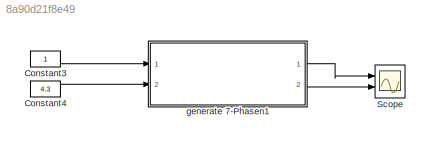
MODEL slx_8a90d21f8e49
KIND model
CONFIG AbsTol = auto
CONFIG EnableMultiTasking = off
CONFIG FixedStep = auto
CONFIG MaxStep = auto
CONFIG MinStep = auto
CONFIG RelTol = 1e-3
CONFIG SampleTimeConstraint = Unconstrained
CONFIG Solver = VariableStepAuto
CONFIG SolverName = VariableStepAuto
CONFIG StartTime = 0.0
CONFIG StopTime = 20
BLOCK [Constant] Constant3
BLOCK [Constant] Constant4
  Value = 4.3
BLOCK [Scope] Scope
  Floating = off
  NumInputPorts = 2
  Ports = [2]
  ScopeSpecificationString = Simulink.scopes.TimeScopeBlockCfg('CurrentConfiguration', extmgr.ConfigurationSet(extmgr.Configuration('Core','General UI',true),extmgr.Configuration('Core','Source UI',true),extmgr.Configuration('Sources','WiredSimulink',true,'DataLoggingVariableName','ScopeData1'),extmgr.Configuration('Visuals','Time Domain',true,'SerializedDisplays',{struct('MinYLimReal','0.95592','MaxYLimReal','1.01052','YLabe...<+1590ch>
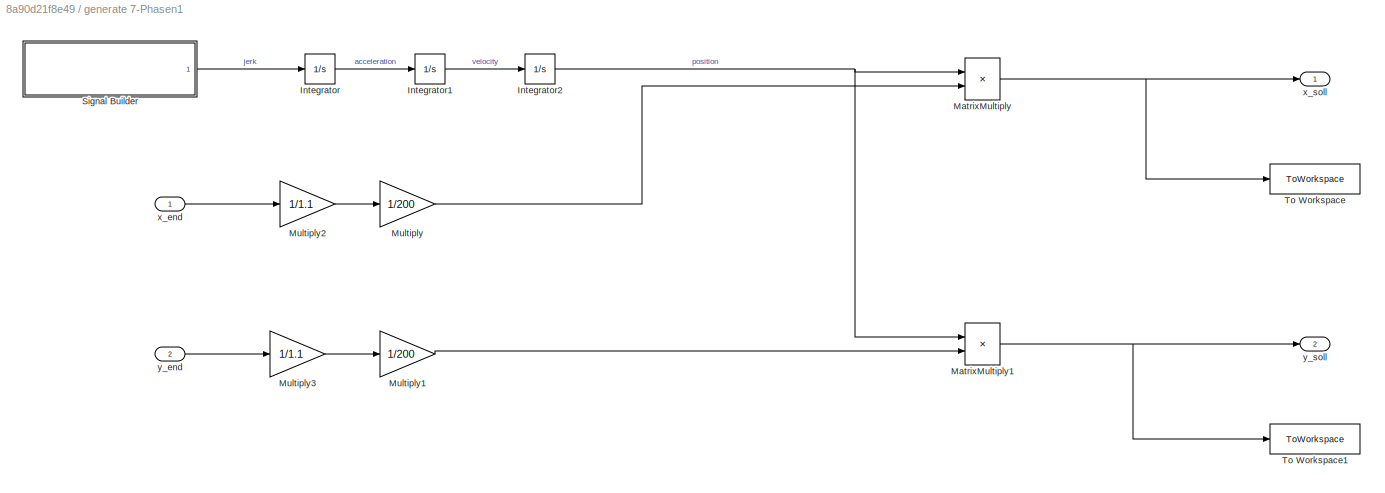
BLOCK [SubSystem] generate 7-Phasen1
  Ports = [2, 2]
  RequestExecContextInheritance = off
BLOCK [Integrator] generate 7-Phasen1/Integrator
  Ports = [1, 1]
BLOCK [Integrator] generate 7-Phasen1/Integrator1
  Ports = [1, 1]
BLOCK [Integrator] generate 7-Phasen1/Integrator2
  Ports = [1, 1]
BLOCK [Product] generate 7-Phasen1/MatrixMultiply
  Ports = [2, 1]
BLOCK [Product] generate 7-Phasen1/MatrixMultiply1
  Ports = [2, 1]
BLOCK [Gain] generate 7-Phasen1/Multiply
  Gain = 1/200
BLOCK [Gain] generate 7-Phasen1/Multiply1
  Gain = 1/200
BLOCK [Gain] generate 7-Phasen1/Multiply2
  Gain = 1/1.1
BLOCK [Gain] generate 7-Phasen1/Multiply3
  Gain = 1/1.1
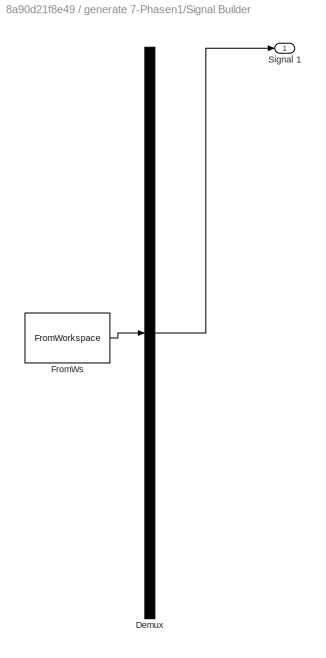
BLOCK [SubSystem] generate 7-Phasen1/Signal Builder
  ClipboardFcn = sigbuilder_block('clipboard');
  CloseFcn = sigbuilder_block('close');
  ContinueFcn = sigbuilder_block('continue');
  CopyFcn = sigbuilder_block('copy');
  DeleteFcn = sigbuilder_block('delete');
  LoadFcn = sigbuilder_block('load');
  MaskHideContents = on
  ModelCloseFcn = sigbuilder_block('modelClose');
  NameChangeFcn = sigbuilder_block('namechange');
  OpenFcn = sigbuilder_block('open',[6 30 1428 681.75 ]);
  PauseFcn = sigbuilder_block('pause');
  Ports = [0, 1]
  PreSaveFcn = sigbuilder_block('preSave');
  RequestExecContextInheritance = off
  StartFcn = sigbuilder_block('start');
  StopFcn = sigbuilder_block('stop');
  Tag = STV Subsys
BLOCK [Demux] generate 7-Phasen1/Signal Builder/Demux
  DisplayOption = none
  Outputs = 1
  Ports = [1, 1]
  Tag = STV Demux
BLOCK [FromWorkspace] generate 7-Phasen1/Signal Builder/FromWs
  Tag = STV FromWs
  VariableName = tuvar
BLOCK [Outport] generate 7-Phasen1/Signal Builder/Signal 1
  Tag = STV Outport
BLOCK [ToWorkspace] generate 7-Phasen1/To Workspace
  Commented = on
  FixptAsFi = on
  MaxDataPoints = inf
  Ports = [1]
  SampleTime = -1
  Save2DSignal = 2-D array (concatenate along first dimension)
  VariableName = x_7_phase
BLOCK [ToWorkspace] generate 7-Phasen1/To Workspace1
  Commented = on
  FixptAsFi = on
  MaxDataPoints = inf
  Ports = [1]
  SampleTime = -1
  Save2DSignal = 2-D array (concatenate along first dimension)
  VariableName = y_7_phase
BLOCK [Inport] generate 7-Phasen1/x_end
BLOCK [Outport] generate 7-Phasen1/x_soll
BLOCK [Inport] generate 7-Phasen1/y_end
  Port = 2
BLOCK [Outport] generate 7-Phasen1/y_soll
  Port = 2
LINE Constant3:1 -> generate 7-Phasen1:1
LINE Constant4:1 -> generate 7-Phasen1:2
LINE generate 7-Phasen1/Integrator1:1 -> generate 7-Phasen1/Integrator2:1
NET generate 7-Phasen1/Integrator2:1 -> generate 7-Phasen1/MatrixMultiply1:1, generate 7-Phasen1/MatrixMultiply:1
LINE generate 7-Phasen1/Integrator:1 -> generate 7-Phasen1/Integrator1:1
NET generate 7-Phasen1/MatrixMultiply1:1 -> generate 7-Phasen1/To Workspace1:1, generate 7-Phasen1/y_soll:1
NET generate 7-Phasen1/MatrixMultiply:1 -> generate 7-Phasen1/To Workspace:1, generate 7-Phasen1/x_soll:1
LINE generate 7-Phasen1/Multiply1:1 -> generate 7-Phasen1/MatrixMultiply1:2
LINE generate 7-Phasen1/Multiply2:1 -> generate 7-Phasen1/Multiply:1
LINE generate 7-Phasen1/Multiply3:1 -> generate 7-Phasen1/Multiply1:1
LINE generate 7-Phasen1/Multiply:1 -> generate 7-Phasen1/MatrixMultiply:2
LINE generate 7-Phasen1/Signal Builder:1 -> generate 7-Phasen1/Integrator:1
LINE generate 7-Phasen1/x_end:1 -> generate 7-Phasen1/Multiply2:1
LINE generate 7-Phasen1/y_end:1 -> generate 7-Phasen1/Multiply3:1
LINE generate 7-Phasen1:1 -> Scope:1
LINE generate 7-Phasen1:2 -> Scope:2
note: NET lines group one-source signal fan-out (src -> all destinations, sorted); 1:1 wires keep LINE
